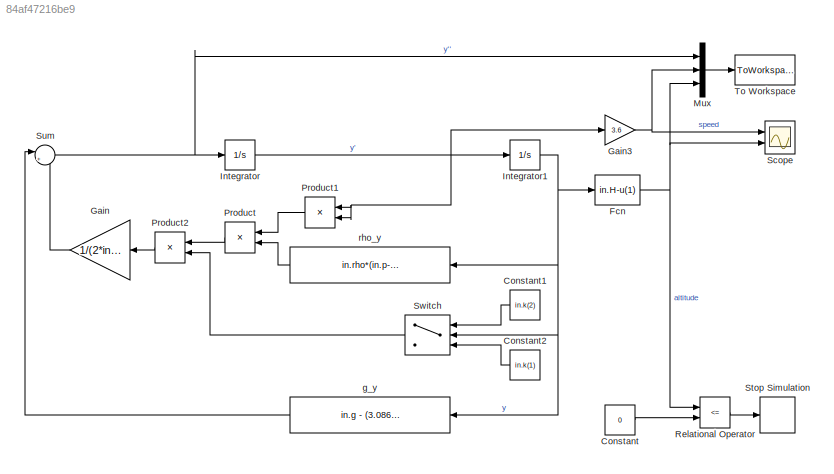
MODEL slx_84af47216be9
KIND model
BLOCK [Constant] Constant
  Value = 0
BLOCK [Constant] Constant1
  Value = in.k(2)
BLOCK [Constant] Constant2
  Value = in.k(1)
BLOCK [Fcn] Fcn
  Expr = in.H-u(1)
BLOCK [Gain] Gain
  Gain = 1/(2*in.m)
  OutDataTypeStr = Inherit: Inherit via internal rule
  ParamDataTypeStr = Inherit: Inherit via internal rule
  SaturateOnIntegerOverflow = off
BLOCK [Gain] Gain3
  Gain = 3.6
  OutDataTypeStr = Inherit: Inherit via internal rule
  ParamDataTypeStr = Inherit: Inherit via internal rule
  SaturateOnIntegerOverflow = off
BLOCK [Integrator] Integrator
  Ports = [1, 1]
BLOCK [Integrator] Integrator1
  Ports = [1, 1]
BLOCK [Mux] Mux
  DisplayOption = bar
  Inputs = 3
  Ports = [3, 1]
BLOCK [Product] Product
  InputSameDT = off
  OutDataTypeStr = Inherit: Inherit via internal rule
  Ports = [2, 1]
  RndMeth = Floor
  SaturateOnIntegerOverflow = off
BLOCK [Product] Product1
  InputSameDT = off
  OutDataTypeStr = Inherit: Inherit via internal rule
  Ports = [2, 1]
  RndMeth = Floor
  SaturateOnIntegerOverflow = off
BLOCK [Product] Product2
  InputSameDT = off
  OutDataTypeStr = Inherit: Inherit via internal rule
  Ports = [2, 1]
  RndMeth = Floor
  SaturateOnIntegerOverflow = off
BLOCK [RelationalOperator] Relational Operator
  InputSameDT = off
  Operator = <=
  OutDataTypeStr = boolean
  Ports = [2, 1]
BLOCK [Scope] Scope
  Floating = off
  LegendLocations = 0.11566     0.17236    0.044776     0.01872\n0.11675    0.078611    0.047641     0.01872
  LimitDataPoints = off
  NumInputPorts = 2
  Ports = [2]
  ShowLegends = on
  YMax = 5~5
  YMin = -5~-5
BLOCK [Stop] Stop Simulation
BLOCK [Sum] Sum
  IconShape = round
  InputSameDT = off
  Inputs = |+-
  OutDataTypeStr = Inherit: Inherit via internal rule
  Ports = [2, 1]
  SaturateOnIntegerOverflow = off
BLOCK [Switch] Switch
  Criteria = u2 > Threshold
  InputSameDT = off
  SaturateOnIntegerOverflow = off
  Threshold = in.h0
BLOCK [ToWorkspace] To Workspace
  FixptAsFi = on
  MaxDataPoints = inf
  Ports = [1]
  SampleTime = -1
  Save2DSignal = 3-D array (concatenate along third dimension)
  SaveFormat = Timeseries
  VariableName = simout
BLOCK [Fcn] g_y
  Expr = in.g - (3.086*(in.H-u(1))*1e-5)
BLOCK [Fcn] rho_y
  Expr = in.rho*(in.p-(13*(in.H-u(1))))/in.p
LINE Constant1:1 -> Switch:1
LINE Constant2:1 -> Switch:3
LINE Constant:1 -> Relational Operator:2
NET Fcn:1 -> Mux:3, Relational Operator:1, Scope:2
NET Gain3:1 -> Mux:2, Scope:1
LINE Gain:1 -> Sum:2
NET Integrator1:1 -> Fcn:1, Switch:2, g_y:1, rho_y:1
NET Integrator:1 -> Gain3:1, Integrator1:1, Product1:1, Product1:2
LINE Mux:1 -> To Workspace:1
LINE Product1:1 -> Product:1
LINE Product2:1 -> Gain:1
LINE Product:1 -> Product2:1
LINE Relational Operator:1 -> Stop Simulation:1
NET Sum:1 -> Integrator:1, Mux:1
LINE Switch:1 -> Product2:2
LINE g_y:1 -> Sum:1
LINE rho_y:1 -> Product:2
note: NET lines group one-source signal fan-out (src -> all destinations, sorted); 1:1 wires keep LINE
